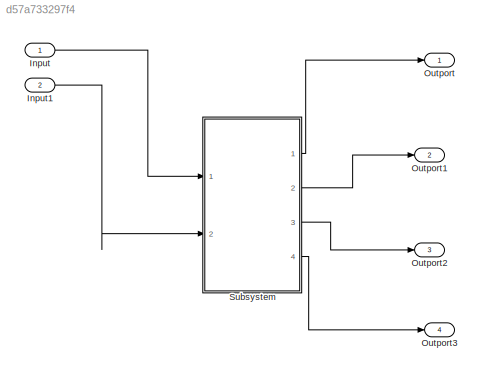
MODEL slx_d57a733297f4
KIND model
CONFIG AbsTol = auto
CONFIG EnableMultiTasking = off
CONFIG FixedStep = auto
CONFIG MaxStep = auto
CONFIG MinStep = auto
CONFIG RelTol = 1e-3
CONFIG SampleTimeConstraint = Unconstrained
CONFIG Solver = VariableStepAuto
CONFIG SolverName = VariableStepAuto
CONFIG StartTime = 0.0
CONFIG StopTime = 10.0
BLOCK [Inport] Input
  IconDisplay = Port number
  OutDataTypeStr = uint8
BLOCK [Inport] Input1
  IconDisplay = Port number
  OutDataTypeStr = uint8
  Port = 2
BLOCK [Outport] Outport
  IconDisplay = Port number
BLOCK [Outport] Outport1
  IconDisplay = Port number
  Port = 2
BLOCK [Outport] Outport2
  IconDisplay = Port number
  Port = 3
BLOCK [Outport] Outport3
  IconDisplay = Port number
  Port = 4
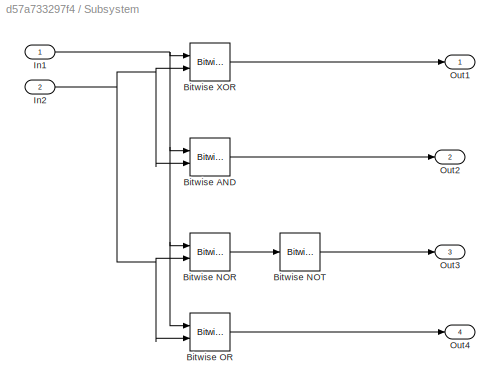
BLOCK [SubSystem] Subsystem
  Ports = [2, 4]
  RTWSystemCode = Reusable function
  RequestExecContextInheritance = off
  TreatAsAtomicUnit = on
BLOCK [Reference] Subsystem/Bitwise AND  REF=simulink/Logic and Bit
Operations/Bitwise
Operator
  Ports = [2, 1]
  SourceBlock = simulink/Logic and Bit\nOperations/Bitwise\nOperator
  SourceProductBaseCode = SL
  SourceProductName = Simulink
  SourceType = Bitwise Operator
BLOCK [Reference] Subsystem/Bitwise NOR  REF=simulink/Logic and Bit
Operations/Bitwise
Operator
  Ports = [2, 1]
  SourceBlock = simulink/Logic and Bit\nOperations/Bitwise\nOperator
  SourceProductBaseCode = SL
  SourceProductName = Simulink
  SourceType = Bitwise Operator
BLOCK [Reference] Subsystem/Bitwise NOT  REF=simulink/Logic and Bit
Operations/Bitwise
Operator
  Ports = [1, 1]
  SourceBlock = simulink/Logic and Bit\nOperations/Bitwise\nOperator
  SourceProductBaseCode = SL
  SourceProductName = Simulink
  SourceType = Bitwise Operator
BLOCK [Reference] Subsystem/Bitwise OR  REF=simulink/Logic and Bit
Operations/Bitwise
Operator
  Ports = [2, 1]
  SourceBlock = simulink/Logic and Bit\nOperations/Bitwise\nOperator
  SourceProductBaseCode = SL
  SourceProductName = Simulink
  SourceType = Bitwise Operator
BLOCK [Reference] Subsystem/Bitwise XOR  REF=simulink/Logic and Bit
Operations/Bitwise
Operator
  Ports = [2, 1]
  SourceBlock = simulink/Logic and Bit\nOperations/Bitwise\nOperator
  SourceProductBaseCode = SL
  SourceProductName = Simulink
  SourceType = Bitwise Operator
BLOCK [Inport] Subsystem/In1
  IconDisplay = Port number
BLOCK [Inport] Subsystem/In2
  IconDisplay = Port number
  Port = 2
BLOCK [Outport] Subsystem/Out1
  IconDisplay = Port number
BLOCK [Outport] Subsystem/Out2
  IconDisplay = Port number
  Port = 2
BLOCK [Outport] Subsystem/Out3
  IconDisplay = Port number
  Port = 3
BLOCK [Outport] Subsystem/Out4
  IconDisplay = Port number
  Port = 4
LINE Input1:1 -> Subsystem:2
LINE Input:1 -> Subsystem:1
LINE Subsystem/Bitwise AND:1 -> Subsystem/Out2:1
LINE Subsystem/Bitwise NOR:1 -> Subsystem/Bitwise NOT:1
LINE Subsystem/Bitwise NOT:1 -> Subsystem/Out3:1
LINE Subsystem/Bitwise OR:1 -> Subsystem/Out4:1
LINE Subsystem/Bitwise XOR:1 -> Subsystem/Out1:1
NET Subsystem/In1:1 -> Subsystem/Bitwise AND:1, Subsystem/Bitwise NOR:1, Subsystem/Bitwise OR:1, Subsystem/Bitwise XOR:1
NET Subsystem/In2:1 -> Subsystem/Bitwise AND:2, Subsystem/Bitwise NOR:2, Subsystem/Bitwise OR:2, Subsystem/Bitwise XOR:2
LINE Subsystem:1 -> Outport:1
LINE Subsystem:2 -> Outport1:1
LINE Subsystem:3 -> Outport2:1
LINE Subsystem:4 -> Outport3:1
note: NET lines group one-source signal fan-out (src -> all destinations, sorted); 1:1 wires keep LINE
